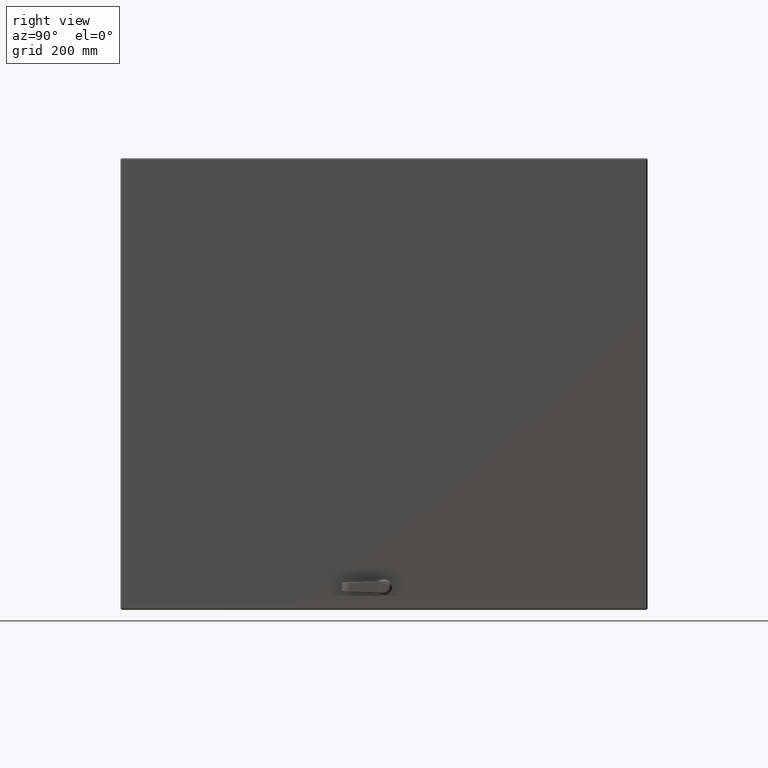
[diagram: clean part render]
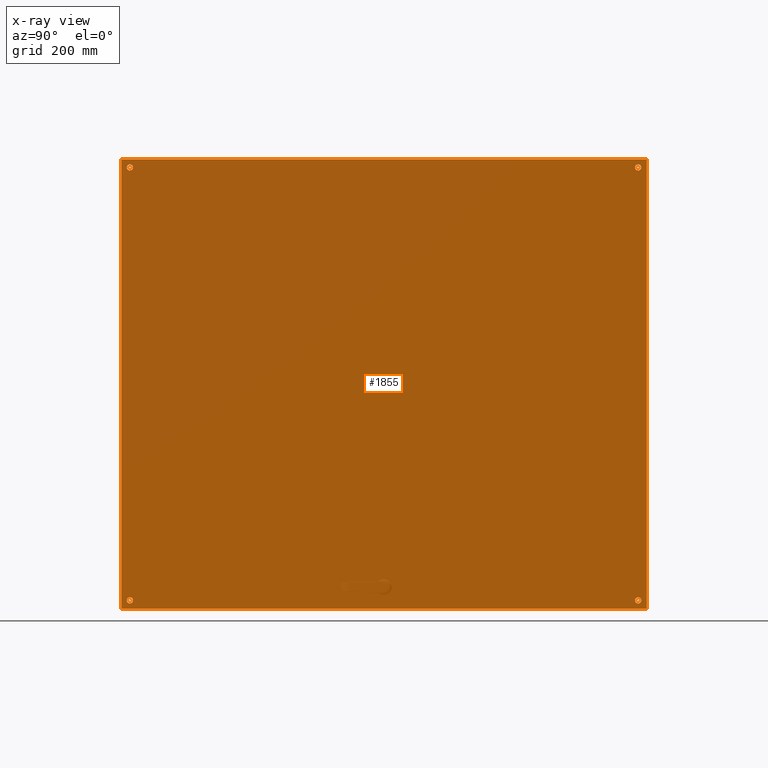
[diagram: x-ray — body ghosted, one internal face saturated and labeled with its STEP entity id]
A machine part, right view, then the same camera in x-ray: the body is ghosted and one INTERNAL B-rep face — a face not visible from any outside direction — is saturated and labeled: STEP entity #1855.
In plain terms, the highlighted planar face has unit normal (-1, -0, -0).
Its self-contained STEP definition (entity closure, byte-faithful):
#1245 = DIRECTION ( 'NONE',  ( -2.465190328815659976E-32, -1.000000000000000000, -0.0000000000000000000 ) ) ;
#1451 = ORIENTED_EDGE ( 'NONE', *, *, #105899, .F. ) ;
#1855 = ADVANCED_FACE ( 'NONE', ( #56466, #31910, #78191, #53545, #4449 ), #82628, .F. ) ;
#2313 = CARTESIAN_POINT ( 'NONE',  ( -17.25000000000000000, -0.07199999999999857903, 20.25000000000004263 ) ) ;
#3842 = VERTEX_POINT ( 'NONE', #36675 ) ;
#4449 = FACE_BOUND ( 'NONE', #77408, .T. ) ;
#4811 = DIRECTION ( 'NONE',  ( -2.465190328815659976E-32, -1.000000000000000000, -0.0000000000000000000 ) ) ;
#6793 = DIRECTION ( 'NONE',  ( -1.000000000000000000, 0.0000000000000000000, 0.0000000000000000000 ) ) ;
#9844 = CARTESIAN_POINT ( 'NONE',  ( 17.89199999999999946, -0.07200000000000078559, 0.0000000000000000000 ) ) ;
#10491 = EDGE_CURVE ( 'NONE', #84990, #11574, #27146, .T. ) ;
#10914 = AXIS2_PLACEMENT_3D ( 'NONE', #71587, #98631, #43710 ) ;
#11574 = VERTEX_POINT ( 'NONE', #91798 ) ;
#14998 = AXIS2_PLACEMENT_3D ( 'NONE', #56552, #1245, #65820 ) ;
#16139 = EDGE_CURVE ( 'NONE', #118678, #30233, #96685, .T. ) ;
#17816 = AXIS2_PLACEMENT_3D ( 'NONE', #76763, #77164, #96087 ) ;
#18523 = AXIS2_PLACEMENT_3D ( 'NONE', #38213, #74980, #20447 ) ;
#20279 = ORIENTED_EDGE ( 'NONE', *, *, #63545, .F. ) ;
#20447 = DIRECTION ( 'NONE',  ( -1.000000000000000000, 2.465190328815659702E-32, 0.0000000000000000000 ) ) ;
#21050 = AXIS2_PLACEMENT_3D ( 'NONE', #60557, #4811, #22262 ) ;
#22262 = DIRECTION ( 'NONE',  ( -1.000000000000000000, 0.0000000000000000000, 0.0000000000000000000 ) ) ;
#25053 = EDGE_LOOP ( 'NONE', ( #34205, #67787, #78516, #75202 ) ) ;
#26550 = CARTESIAN_POINT ( 'NONE',  ( -17.89199999999999946, -0.07200000000000078559, 20.92799999999986582 ) ) ;
#26765 = DIRECTION ( 'NONE',  ( -2.465190328815659976E-32, -1.000000000000000000, -0.0000000000000000000 ) ) ;
#27146 = LINE ( 'NONE', #86003, #97959 ) ;
#27631 = CARTESIAN_POINT ( 'NONE',  ( 17.00000000000000000, -0.07199999999999857903, 20.25000000000004263 ) ) ;
#28585 = ORIENTED_EDGE ( 'NONE', *, *, #105348, .F. ) ;
#30233 = VERTEX_POINT ( 'NONE', #71426 ) ;
#30858 = CARTESIAN_POINT ( 'NONE',  ( 17.89200000000000301, -0.07200000000000078559, -20.92800000000000082 ) ) ;
#30934 = DIRECTION ( 'NONE',  ( -1.000000000000000000, 0.0000000000000000000, 0.0000000000000000000 ) ) ;
#31910 = FACE_BOUND ( 'NONE', #62185, .T. ) ;
#32864 = VERTEX_POINT ( 'NONE', #33884 ) ;
#33669 = CARTESIAN_POINT ( 'NONE',  ( 0.0000000000000000000, -0.07200000000000078559, 20.92799999999980542 ) ) ;
#33884 = CARTESIAN_POINT ( 'NONE',  ( -17.00000000000000000, -0.07199999999999857903, 20.25000000000004263 ) ) ;
#34205 = ORIENTED_EDGE ( 'NONE', *, *, #111866, .F. ) ;
#35328 = ORIENTED_EDGE ( 'NONE', *, *, #42849, .F. ) ;
#36060 = VERTEX_POINT ( 'NONE', #56671 ) ;
#36675 = CARTESIAN_POINT ( 'NONE',  ( 17.50000000000000000, -0.07199999999999857903, 20.25000000000004263 ) ) ;
#38213 = CARTESIAN_POINT ( 'NONE',  ( 0.0000000000000000000, -0.07200000000000078559, 0.0000000000000000000 ) ) ;
#40247 = EDGE_CURVE ( 'NONE', #55461, #84990, #70183, .T. ) ;
#42815 = CARTESIAN_POINT ( 'NONE',  ( 17.89199999999999946, -0.07200000000000078559, 20.92799999999986582 ) ) ;
#42849 = EDGE_CURVE ( 'NONE', #30233, #118678, #93555, .T. ) ;
#43710 = DIRECTION ( 'NONE',  ( -1.000000000000000000, 0.0000000000000000000, 0.0000000000000000000 ) ) ;
#43803 = DIRECTION ( 'NONE',  ( -1.000000000000000000, 0.0000000000000000000, 0.0000000000000000000 ) ) ;
#48470 = ORIENTED_EDGE ( 'NONE', *, *, #16139, .F. ) ;
#53545 = FACE_BOUND ( 'NONE', #107196, .T. ) ;
#55461 = VERTEX_POINT ( 'NONE', #42815 ) ;
#55937 = EDGE_LOOP ( 'NONE', ( #57324, #20279 ) ) ;
#56466 = FACE_OUTER_BOUND ( 'NONE', #25053, .T. ) ;
#56552 = CARTESIAN_POINT ( 'NONE',  ( -17.25000000000000000, -0.07199999999999857903, -20.25000000000004263 ) ) ;
#56671 = CARTESIAN_POINT ( 'NONE',  ( -17.50000000000000000, -0.07199999999999857903, 20.25000000000004263 ) ) ;
#57324 = ORIENTED_EDGE ( 'NONE', *, *, #105008, .F. ) ;
#60557 = CARTESIAN_POINT ( 'NONE',  ( 17.25000000000000000, -0.07199999999999857903, 20.25000000000004263 ) ) ;
#61323 = EDGE_CURVE ( 'NONE', #11574, #107813, #71888, .T. ) ;
#62185 = EDGE_LOOP ( 'NONE', ( #28585, #101554 ) ) ;
#62314 = CARTESIAN_POINT ( 'NONE',  ( -17.00000000000000000, -0.07199999999999857903, -20.25000000000004263 ) ) ;
#63411 = AXIS2_PLACEMENT_3D ( 'NONE', #109172, #89840, #43803 ) ;
#63545 = EDGE_CURVE ( 'NONE', #89319, #104802, #89861, .T. ) ;
#65820 = DIRECTION ( 'NONE',  ( -1.000000000000000000, 0.0000000000000000000, 0.0000000000000000000 ) ) ;
#67714 = DIRECTION ( 'NONE',  ( -2.465190328815659976E-32, -1.000000000000000000, -0.0000000000000000000 ) ) ;
#67787 = ORIENTED_EDGE ( 'NONE', *, *, #61323, .F. ) ;
#68552 = DIRECTION ( 'NONE',  ( 0.0000000000000000000, 0.0000000000000000000, 1.000000000000000000 ) ) ;
#69279 = ORIENTED_EDGE ( 'NONE', *, *, #115874, .F. ) ;
#70183 = LINE ( 'NONE', #9844, #100507 ) ;
#70374 = VECTOR ( 'NONE', #68552, 39.37007874015748143 ) ;
#71426 = CARTESIAN_POINT ( 'NONE',  ( -17.50000000000000000, -0.07199999999999857903, -20.25000000000004263 ) ) ;
#71452 = AXIS2_PLACEMENT_3D ( 'NONE', #108132, #117414, #6793 ) ;
#71587 = CARTESIAN_POINT ( 'NONE',  ( 17.25000000000000000, -0.07199999999999857903, 20.25000000000004263 ) ) ;
#71888 = LINE ( 'NONE', #96801, #70374 ) ;
#72444 = CARTESIAN_POINT ( 'NONE',  ( -17.25000000000000000, -0.07199999999999857903, -20.25000000000004263 ) ) ;
#74032 = DIRECTION ( 'NONE',  ( -1.000000000000000000, 0.0000000000000000000, 0.0000000000000000000 ) ) ;
#74503 = DIRECTION ( 'NONE',  ( -0.0000000000000000000, -0.0000000000000000000, -1.000000000000000000 ) ) ;
#74980 = DIRECTION ( 'NONE',  ( 2.465190328815659702E-32, 1.000000000000000000, -0.0000000000000000000 ) ) ;
#75202 = ORIENTED_EDGE ( 'NONE', *, *, #40247, .F. ) ;
#76763 = CARTESIAN_POINT ( 'NONE',  ( -17.25000000000000000, -0.07199999999999857903, 20.25000000000004263 ) ) ;
#77164 = DIRECTION ( 'NONE',  ( -2.465190328815659976E-32, -1.000000000000000000, -0.0000000000000000000 ) ) ;
#77408 = EDGE_LOOP ( 'NONE', ( #35328, #48470 ) ) ;
#78191 = FACE_BOUND ( 'NONE', #55937, .T. ) ;
#78363 = AXIS2_PLACEMENT_3D ( 'NONE', #2313, #67714, #30934 ) ;
#78516 = ORIENTED_EDGE ( 'NONE', *, *, #10491, .F. ) ;
#80163 = CARTESIAN_POINT ( 'NONE',  ( 17.00000000000000000, -0.07199999999999857903, -20.25000000000004263 ) ) ;
#82628 = PLANE ( 'NONE',  #18523 ) ;
#83294 = CIRCLE ( 'NONE', #10914, 0.2500000000000008882 ) ;
#84525 = VECTOR ( 'NONE', #89370, 39.37007874015748143 ) ;
#84990 = VERTEX_POINT ( 'NONE', #30858 ) ;
#86003 = CARTESIAN_POINT ( 'NONE',  ( 0.0000000000000000000, -0.07200000000000078559, -20.92800000000007898 ) ) ;
#86314 = CIRCLE ( 'NONE', #63411, 0.2500000000000008882 ) ;
#87882 = CARTESIAN_POINT ( 'NONE',  ( 17.50000000000000000, -0.07199999999999857903, -20.25000000000004263 ) ) ;
#89319 = VERTEX_POINT ( 'NONE', #87882 ) ;
#89370 = DIRECTION ( 'NONE',  ( 1.000000000000000000, -2.465190328815659702E-32, -0.0000000000000000000 ) ) ;
#89840 = DIRECTION ( 'NONE',  ( -2.465190328815659976E-32, -1.000000000000000000, -0.0000000000000000000 ) ) ;
#89861 = CIRCLE ( 'NONE', #71452, 0.2500000000000008882 ) ;
#91798 = CARTESIAN_POINT ( 'NONE',  ( -17.89199999999999946, -0.07200000000000078559, -20.92800000000000082 ) ) ;
#91923 = AXIS2_PLACEMENT_3D ( 'NONE', #72444, #26765, #74032 ) ;
#93555 = CIRCLE ( 'NONE', #91923, 0.2500000000000008882 ) ;
#95297 = DIRECTION ( 'NONE',  ( -1.000000000000000000, 2.465190328815659702E-32, 0.0000000000000000000 ) ) ;
#95838 = CIRCLE ( 'NONE', #78363, 0.2500000000000008882 ) ;
#96087 = DIRECTION ( 'NONE',  ( -1.000000000000000000, 0.0000000000000000000, 0.0000000000000000000 ) ) ;
#96685 = CIRCLE ( 'NONE', #14998, 0.2500000000000008882 ) ;
#96801 = CARTESIAN_POINT ( 'NONE',  ( -17.89199999999999946, -0.07200000000000078559, 0.0000000000000000000 ) ) ;
#97959 = VECTOR ( 'NONE', #95297, 39.37007874015748143 ) ;
#98587 = CIRCLE ( 'NONE', #17816, 0.2500000000000008882 ) ;
#98631 = DIRECTION ( 'NONE',  ( -2.465190328815659976E-32, -1.000000000000000000, -0.0000000000000000000 ) ) ;
#98750 = EDGE_CURVE ( 'NONE', #3842, #115373, #106640, .T. ) ;
#100507 = VECTOR ( 'NONE', #74503, 39.37007874015748143 ) ;
#101554 = ORIENTED_EDGE ( 'NONE', *, *, #98750, .F. ) ;
#104802 = VERTEX_POINT ( 'NONE', #80163 ) ;
#105008 = EDGE_CURVE ( 'NONE', #104802, #89319, #86314, .T. ) ;
#105348 = EDGE_CURVE ( 'NONE', #115373, #3842, #83294, .T. ) ;
#105899 = EDGE_CURVE ( 'NONE', #32864, #36060, #95838, .T. ) ;
#106185 = LINE ( 'NONE', #33669, #84525 ) ;
#106640 = CIRCLE ( 'NONE', #21050, 0.2500000000000008882 ) ;
#107196 = EDGE_LOOP ( 'NONE', ( #69279, #1451 ) ) ;
#107813 = VERTEX_POINT ( 'NONE', #26550 ) ;
#108132 = CARTESIAN_POINT ( 'NONE',  ( 17.25000000000000000, -0.07199999999999857903, -20.25000000000004263 ) ) ;
#109172 = CARTESIAN_POINT ( 'NONE',  ( 17.25000000000000000, -0.07199999999999857903, -20.25000000000004263 ) ) ;
#111866 = EDGE_CURVE ( 'NONE', #107813, #55461, #106185, .T. ) ;
#115373 = VERTEX_POINT ( 'NONE', #27631 ) ;
#115874 = EDGE_CURVE ( 'NONE', #36060, #32864, #98587, .T. ) ;
#117414 = DIRECTION ( 'NONE',  ( -2.465190328815659976E-32, -1.000000000000000000, -0.0000000000000000000 ) ) ;
#118678 = VERTEX_POINT ( 'NONE', #62314 ) ;